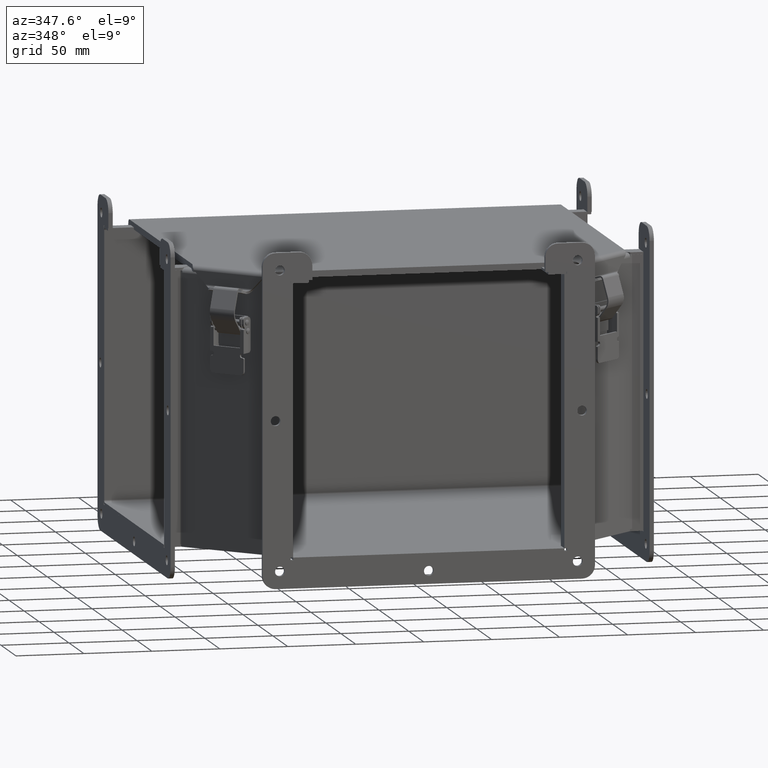
[diagram: clean part render]
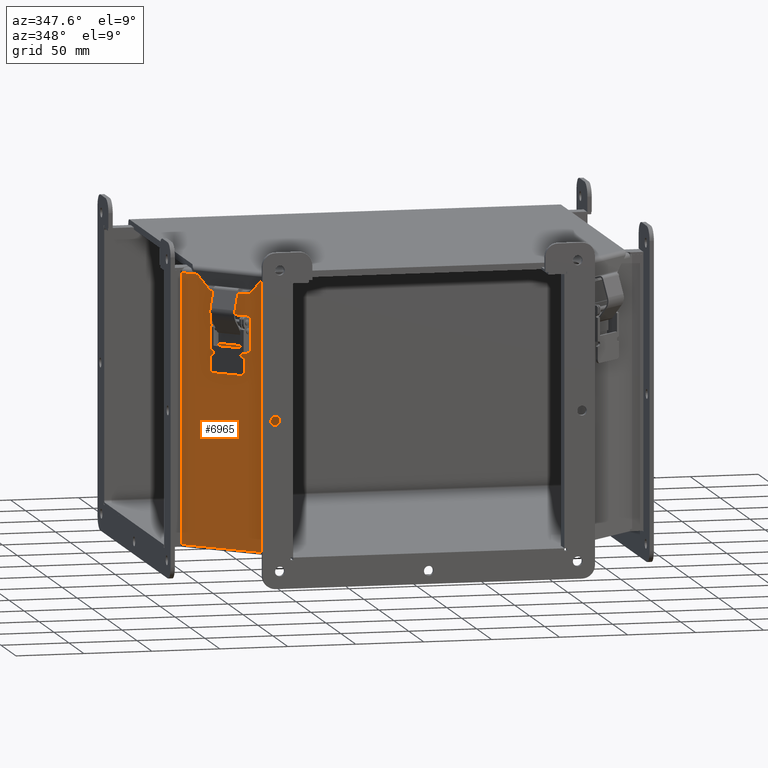
[diagram: same view with one face highlighted and labeled with its STEP entity id]
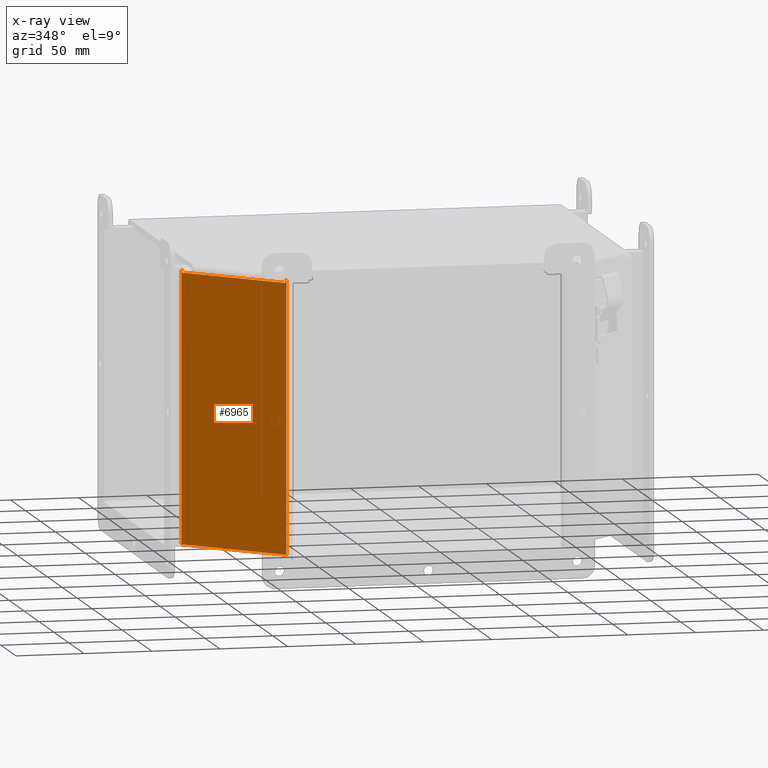
[diagram: x-ray of the same camera — body ghosted, the highlighted face saturated]
A machine part, auxiliary view. The second image highlights one B-rep face of the part: STEP entity #6965.
The next image is the same camera in x-ray: the body ghosted, the highlighted face saturated — about 0% of this face is hidden behind the body in this view.
In plain terms, the highlighted planar face has unit normal (0.7071, 0.7071, 0).
Its self-contained STEP definition (entity closure, byte-faithful):
#323=PLANE('',#7377);
#582=FACE_OUTER_BOUND('',#966,.T.);
#966=EDGE_LOOP('',(#4832,#4833,#4834,#4835,#4836,#4837,#4838,#4839,#4840,
#4841,#4842,#4843));
#1718=LINE('',#10097,#2428);
#1720=LINE('',#10101,#2430);
#1733=LINE('',#10127,#2443);
#1734=LINE('',#10129,#2444);
#1735=LINE('',#10131,#2445);
#1736=LINE('',#10133,#2446);
#1737=LINE('',#10135,#2447);
#1738=LINE('',#10137,#2448);
#1739=LINE('',#10139,#2449);
#1740=LINE('',#10141,#2450);
#1741=LINE('',#10143,#2451);
#1742=LINE('',#10144,#2452);
#2428=VECTOR('',#8117,7.852);
#2430=VECTOR('',#8121,3.52573319163749);
#2443=VECTOR('',#8138,0.0281665958187488);
#2444=VECTOR('',#8139,0.0684668083625062);
#2445=VECTOR('',#8140,0.000199999999999981);
#2446=VECTOR('',#8141,0.000199999999999981);
#2447=VECTOR('',#8142,3.469);
#2448=VECTOR('',#8143,0.000199999999999981);
#2449=VECTOR('',#8144,0.000199999999999981);
#2450=VECTOR('',#8145,0.0684668083625062);
#2451=VECTOR('',#8146,0.0281665958187474);
#2452=VECTOR('',#8147,7.852);
#3117=VERTEX_POINT('',#10081);
#3120=VERTEX_POINT('',#10088);
#3122=VERTEX_POINT('',#10100);
#3133=VERTEX_POINT('',#10126);
#3134=VERTEX_POINT('',#10128);
#3135=VERTEX_POINT('',#10130);
#3136=VERTEX_POINT('',#10132);
#3137=VERTEX_POINT('',#10134);
#3138=VERTEX_POINT('',#10136);
#3139=VERTEX_POINT('',#10138);
#3140=VERTEX_POINT('',#10140);
#3141=VERTEX_POINT('',#10142);
#3794=EDGE_CURVE('',#3117,#3120,#1718,.T.);
#3796=EDGE_CURVE('',#3117,#3122,#1720,.T.);
#3809=EDGE_CURVE('',#3133,#3120,#1733,.T.);
#3810=EDGE_CURVE('',#3133,#3134,#1734,.T.);
#3811=EDGE_CURVE('',#3134,#3135,#1735,.T.);
#3812=EDGE_CURVE('',#3135,#3136,#1736,.T.);
#3813=EDGE_CURVE('',#3136,#3137,#1737,.T.);
#3814=EDGE_CURVE('',#3137,#3138,#1738,.T.);
#3815=EDGE_CURVE('',#3138,#3139,#1739,.T.);
#3816=EDGE_CURVE('',#3139,#3140,#1740,.T.);
#3817=EDGE_CURVE('',#3141,#3140,#1741,.T.);
#3818=EDGE_CURVE('',#3141,#3122,#1742,.T.);
#4832=ORIENTED_EDGE('',*,*,#3794,.T.);
#4833=ORIENTED_EDGE('',*,*,#3809,.F.);
#4834=ORIENTED_EDGE('',*,*,#3810,.T.);
#4835=ORIENTED_EDGE('',*,*,#3811,.T.);
#4836=ORIENTED_EDGE('',*,*,#3812,.T.);
#4837=ORIENTED_EDGE('',*,*,#3813,.T.);
#4838=ORIENTED_EDGE('',*,*,#3814,.T.);
#4839=ORIENTED_EDGE('',*,*,#3815,.T.);
#4840=ORIENTED_EDGE('',*,*,#3816,.T.);
#4841=ORIENTED_EDGE('',*,*,#3817,.F.);
#4842=ORIENTED_EDGE('',*,*,#3818,.T.);
#4843=ORIENTED_EDGE('',*,*,#3796,.F.);
#6965=ADVANCED_FACE('',(#582),#323,.F.);
#7377=AXIS2_PLACEMENT_3D('',#10125,#8136,#8137);
#8117=DIRECTION('',(0.,1.,0.));
#8121=DIRECTION('',(1.,0.,0.));
#8136=DIRECTION('center_axis',(0.,0.,1.));
#8137=DIRECTION('ref_axis',(1.,0.,0.));
#8138=DIRECTION('',(-1.,0.,0.));
#8139=DIRECTION('',(0.,-1.,0.));
#8140=DIRECTION('',(1.,0.,0.));
#8141=DIRECTION('',(0.,1.,0.));
#8142=DIRECTION('',(1.,0.,0.));
#8143=DIRECTION('',(0.,-1.,0.));
#8144=DIRECTION('',(1.,0.,0.));
#8145=DIRECTION('',(0.,1.,0.));
#8146=DIRECTION('',(-1.,0.,0.));
#8147=DIRECTION('',(-8.90668729467717E-17,-1.,0.));
#10081=CARTESIAN_POINT('',(-1.76286659581875,-3.926,0.));
#10088=CARTESIAN_POINT('',(-1.76286659581875,3.926,0.));
#10097=CARTESIAN_POINT('',(-1.76286659581875,4.13675,0.));
#10100=CARTESIAN_POINT('',(1.76286659581875,-3.926,0.));
#10101=CARTESIAN_POINT('',(-2.26575,-3.926,0.));
#10125=CARTESIAN_POINT('Origin',(-5.34850590495105E-18,4.3475,0.));
#10126=CARTESIAN_POINT('',(-1.7347,3.926,0.));
#10127=CARTESIAN_POINT('',(2.26575,3.926,0.));
#10128=CARTESIAN_POINT('',(-1.7347,3.85753319163749,-2.18547839493141E-17));
#10129=CARTESIAN_POINT('',(-1.7347,4.17098340418125,0.));
#10130=CARTESIAN_POINT('',(-1.7345,3.85753319163749,-2.18547839493141E-17));
#10131=CARTESIAN_POINT('',(-0.86735,3.85753319163749,0.));
#10132=CARTESIAN_POINT('',(-1.7345,3.85773319163749,0.));
#10133=CARTESIAN_POINT('',(-1.7345,4.10251659581875,0.));
#10134=CARTESIAN_POINT('',(1.7345,3.85773319163749,0.));
#10135=CARTESIAN_POINT('',(-0.86725,3.85773319163749,0.));
#10136=CARTESIAN_POINT('',(1.7345,3.85753319163749,-2.18547839493141E-17));
#10137=CARTESIAN_POINT('',(1.7345,4.17098340418125,0.));
#10138=CARTESIAN_POINT('',(1.7347,3.85753319163749,-2.18547839493141E-17));
#10139=CARTESIAN_POINT('',(0.86725,3.85753319163749,0.));
#10140=CARTESIAN_POINT('',(1.7347,3.926,0.));
#10141=CARTESIAN_POINT('',(1.7347,4.10251659581875,0.));
#10142=CARTESIAN_POINT('',(1.76286659581875,3.926,0.));
#10143=CARTESIAN_POINT('',(2.26575,3.926,0.));
#10144=CARTESIAN_POINT('',(1.76286659581875,0.21075,0.));